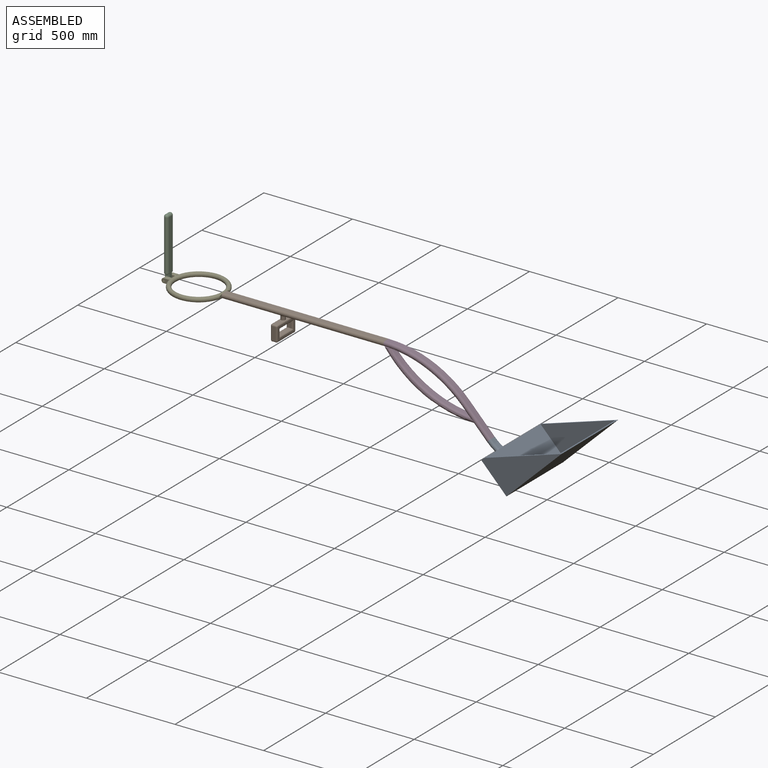
[diagram: assembled view]
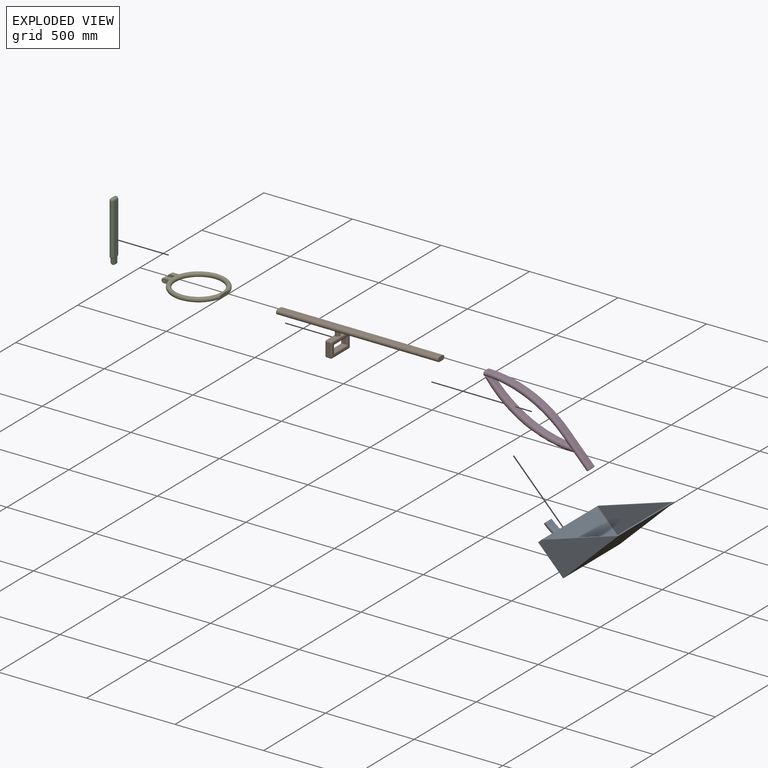
[diagram: exploded view]
GUIDED TOUR — MATED ASSEMBLY (Onshape document 1c8d9ddbb472d9208faf9aa4, AutoMate assembly 1c8d9ddbb472d9208faf9aa4_1388e3e6d33388375ee5ce7e_33b5235e5f922ec50e12a741_default)

This assembly has 5 components, labeled P0..P4 below (a component is one placed occurrence of a part; the same part can appear more than once), held together by 4 mates. A mate is a constraint between two components; its type names the relative motion it leaves free:
  FASTENED — locks the two components together rigidly (no relative motion).
Axis/direction vectors are unit vectors and 'through' points are millimeter coordinates, both in the assembly's world frame.

MATES
  1. FASTENED "Fastened 1": P1 <-> P3, direction (1.000, 0.000, 0.000) through (944.68, -0.93, -319.10) mm
  2. FASTENED "Fastened 3": P0 <-> P3, direction (-0.694, 0.000, 0.720) through (1533.77, -0.92, -655.83) mm
  3. FASTENED "Fastened 4": P2 <-> P4, direction (0.000, 1.000, 0.000) through (-287.22, 8.60, -319.10) mm
  4. FASTENED "Fastened 2": P4 <-> P1, direction (1.000, 0.000, 0.000) through (30.28, -0.93, -319.10) mm

ASSEMBLY ORDER
  1. P4 — the base component [order verified]
  2. P2 [order verified]
  3. P1 [order verified]
  4. P3 [order verified]
  5. P0 [order verified]
Order-tag legend:
  [order verified] — this step's position reverses a verified removal order: the component was checked to insert without passing through the ones already placed.

Of the 5 components, 1 carries the full construction recipe — the FeatureScript program that regenerates the part's solid from scratch; the rest are supplied as boundary geometry only.
Each toured component is shown spotlighted twice — in the assembled view, then in the exploded view, where a leader line traces a displaced component back to its assembled socket (saturated green if recipe-attached, orange if geometry-only; every other component desaturated gray) — followed by its recipe or geometry summary and the mates that hold it.
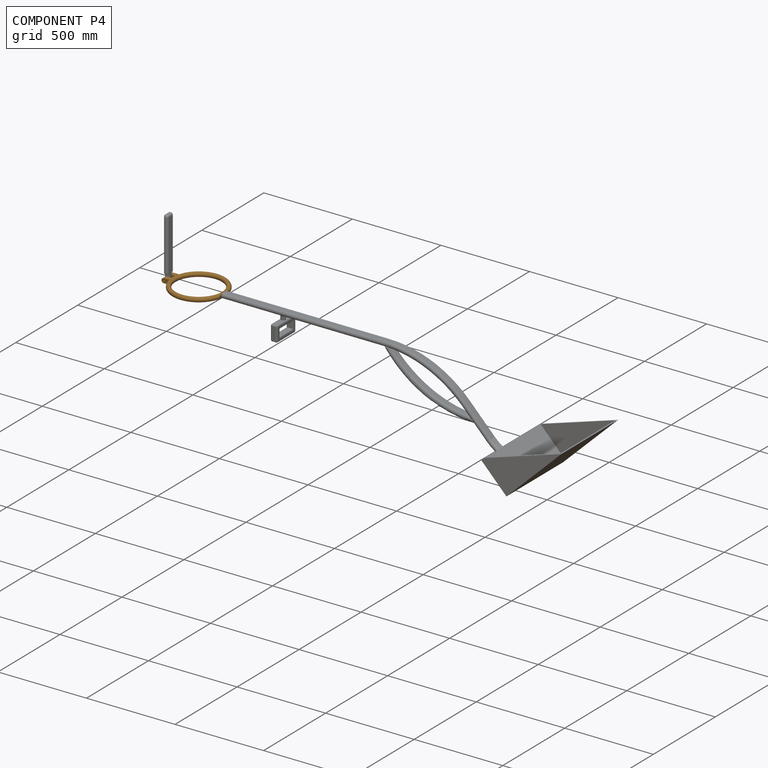
[diagram: component P4 — assembled]
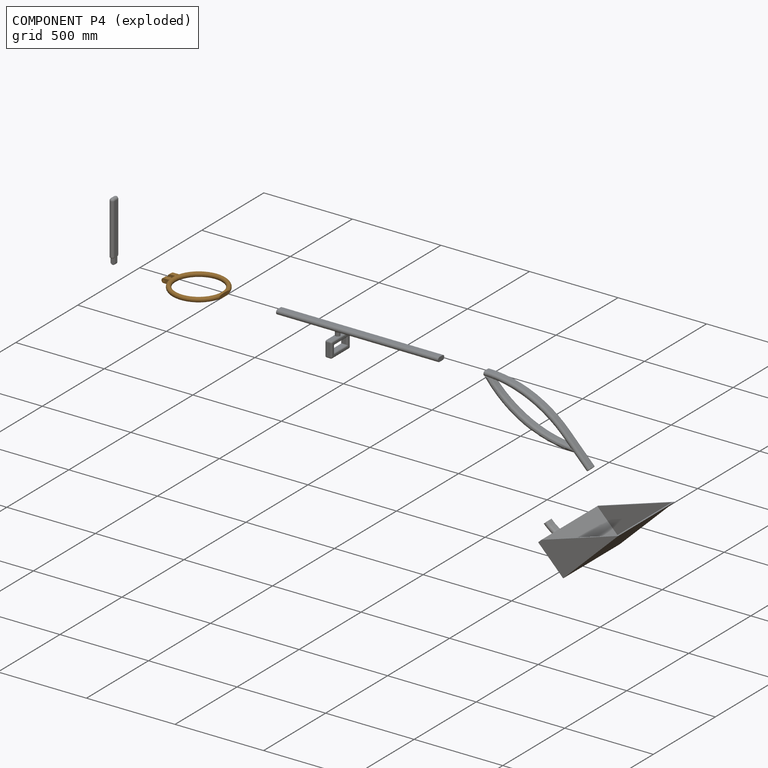
[diagram: component P4 — exploded]
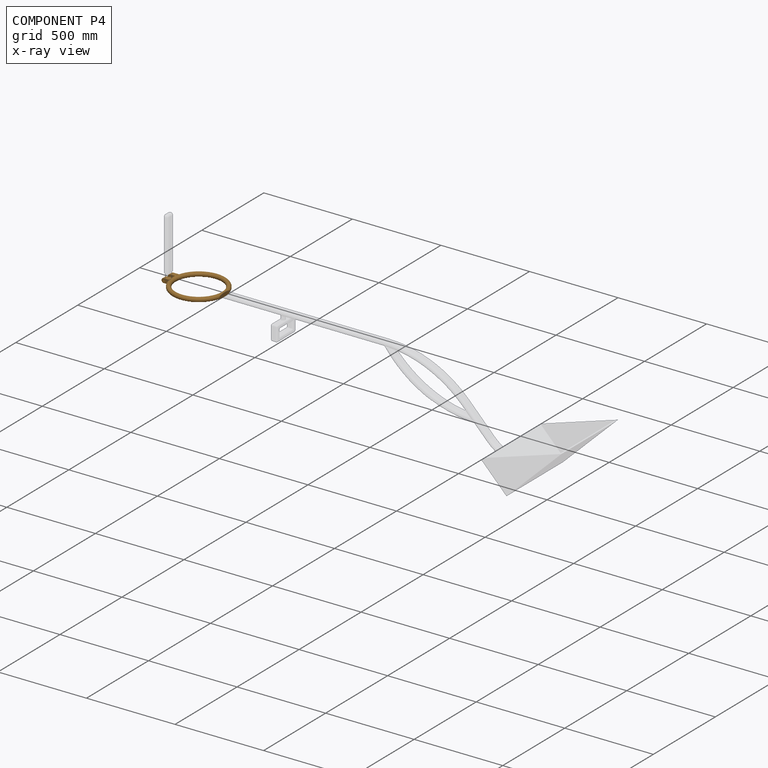
[diagram: component P4 — x-ray view]
COMPONENT P4 — geometry summary (no construction recipe available for this part):
  bounding box: 349.1 x 329.9 x 25.4 mm
  B-rep topology: 2 solids, 19 faces, 90 edges
  volume: 480827 mm^3 (16% of its bounding box)
  symmetry: mirror-symmetric across its y mid-plane
Held by: FASTENED mate "Fastened 4" to P2; FASTENED mate "Fastened 2" to P1.
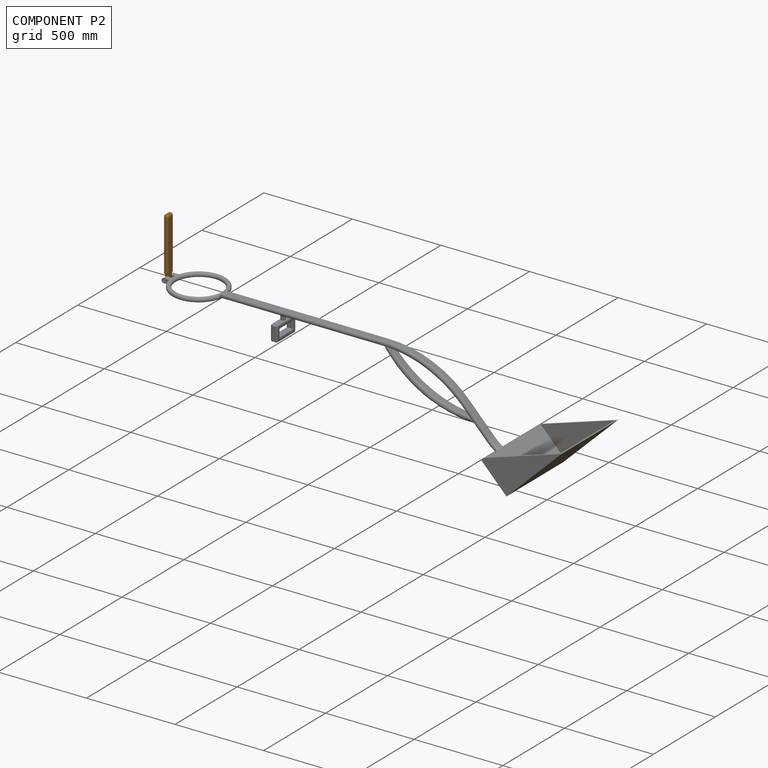
[diagram: component P2 — assembled]
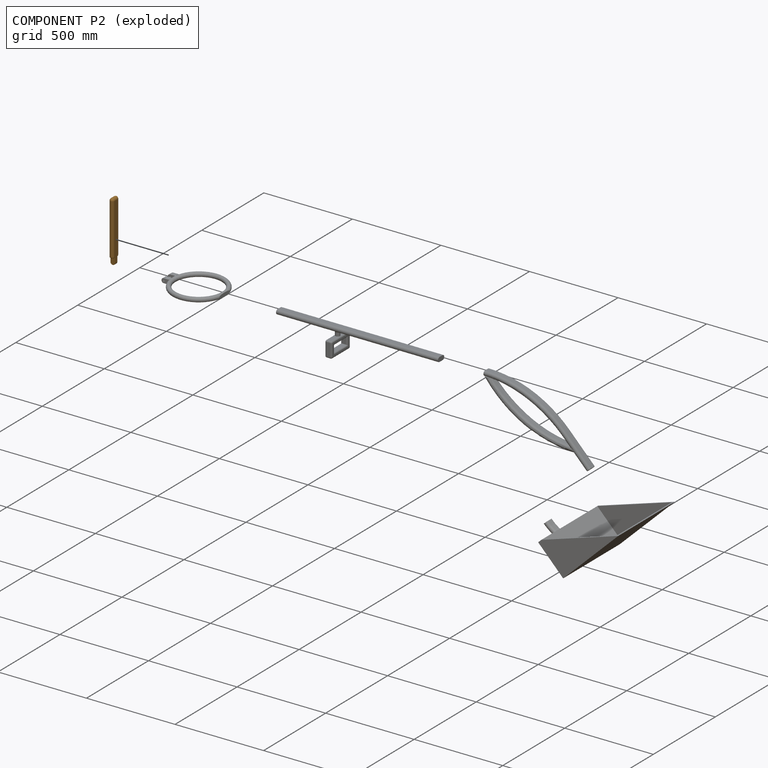
[diagram: component P2 — exploded]
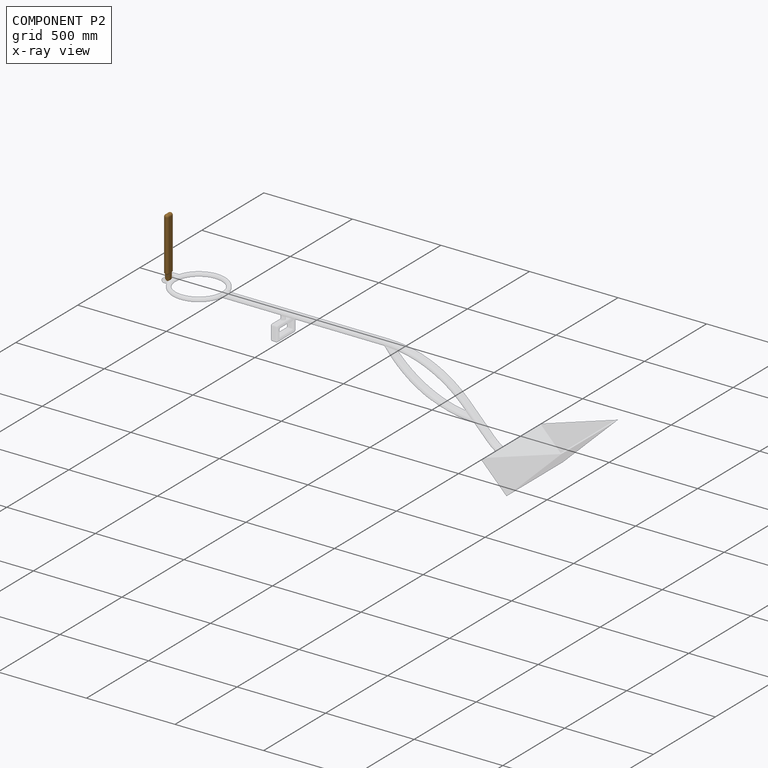
[diagram: component P2 — x-ray view]
COMPONENT P2 — geometry summary (no construction recipe available for this part):
  bounding box: 342.9 x 52.9 x 27.5 mm
  B-rep topology: 1 solid, 18 faces, 86 edges
  volume: 363579 mm^3 (73% of its bounding box)
  symmetry: 2-fold rotationally symmetric about the y axis; mirror-symmetric across its x mid-plane, z mid-plane
Held by: FASTENED mate "Fastened 4" to P4.
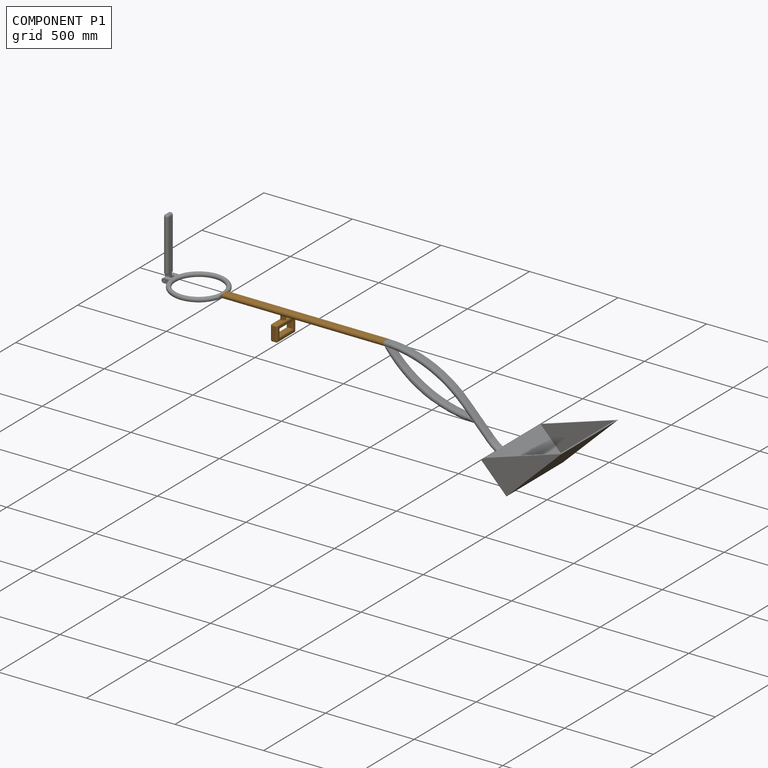
[diagram: component P1 — assembled]
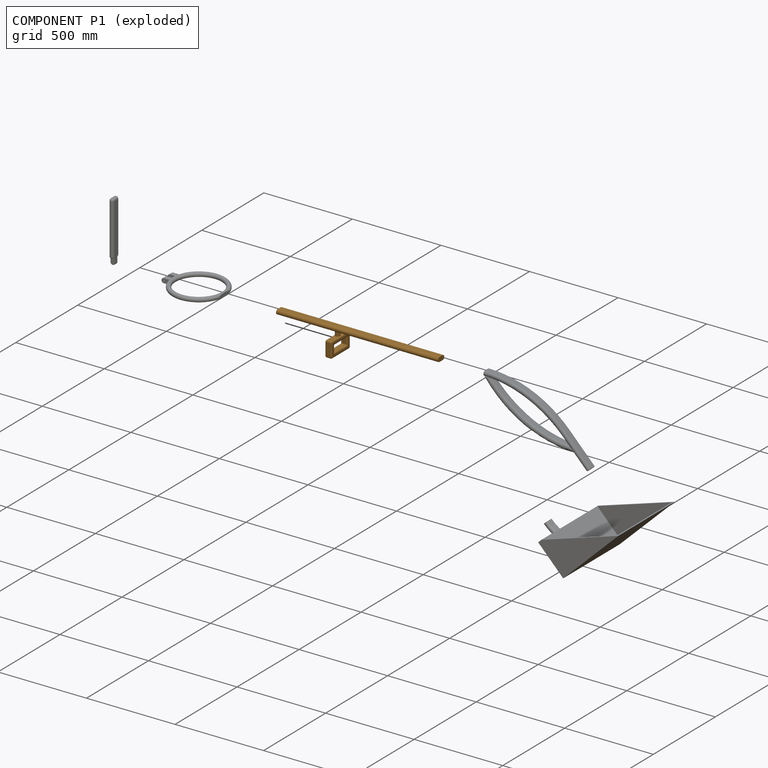
[diagram: component P1 — exploded]
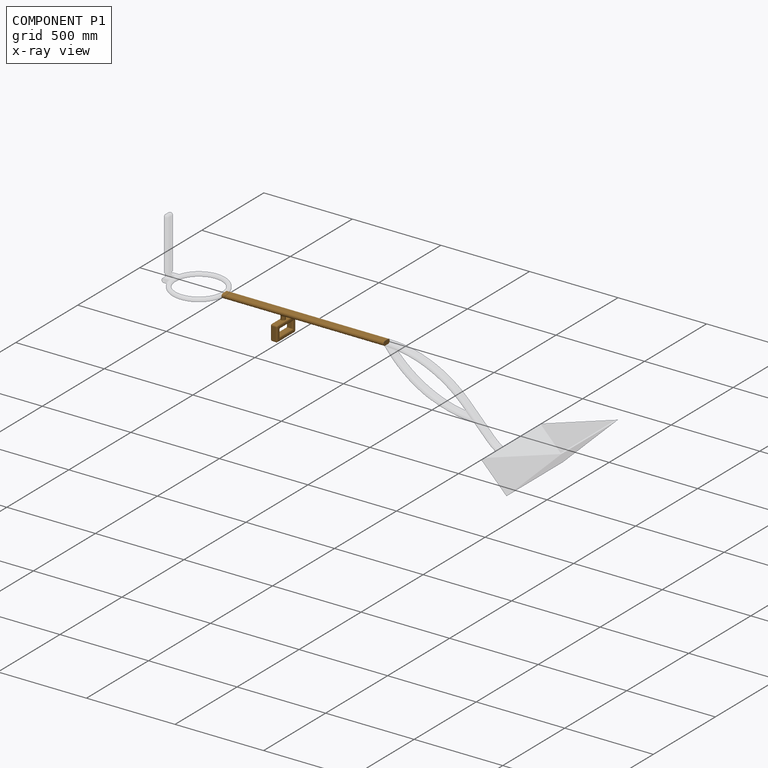
[diagram: component P1 — x-ray view]
COMPONENT P1 — geometry summary (no construction recipe available for this part):
  bounding box: 914.4 x 152.4 x 139.7 mm
  B-rep topology: 1 solid, 55 faces, 244 edges
  volume: 1411330 mm^3 (7% of its bounding box)
  symmetry: mirror-symmetric across its y mid-plane
Held by: FASTENED mate "Fastened 1" to P3; FASTENED mate "Fastened 2" to P4.
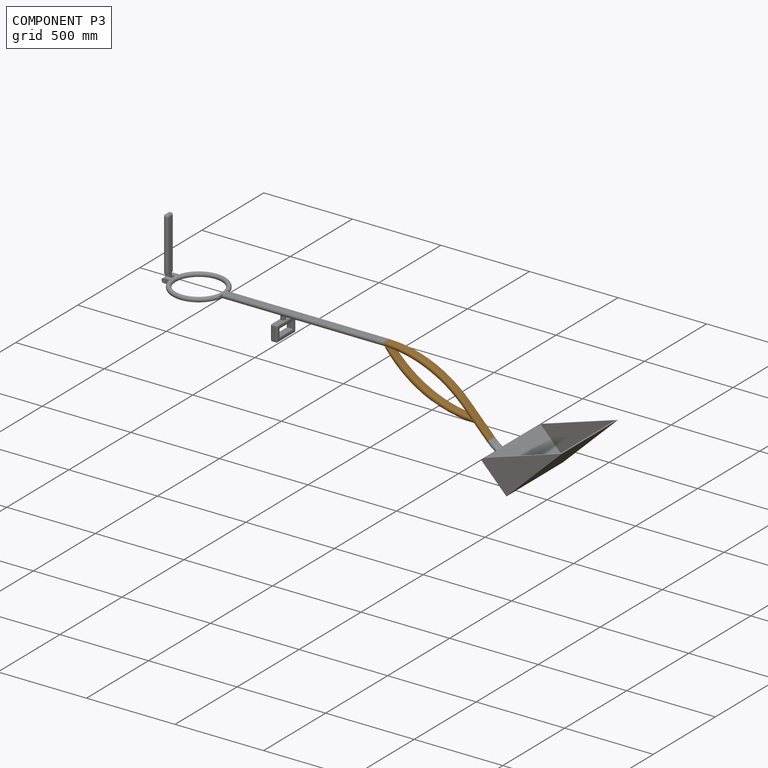
[diagram: component P3 — assembled]
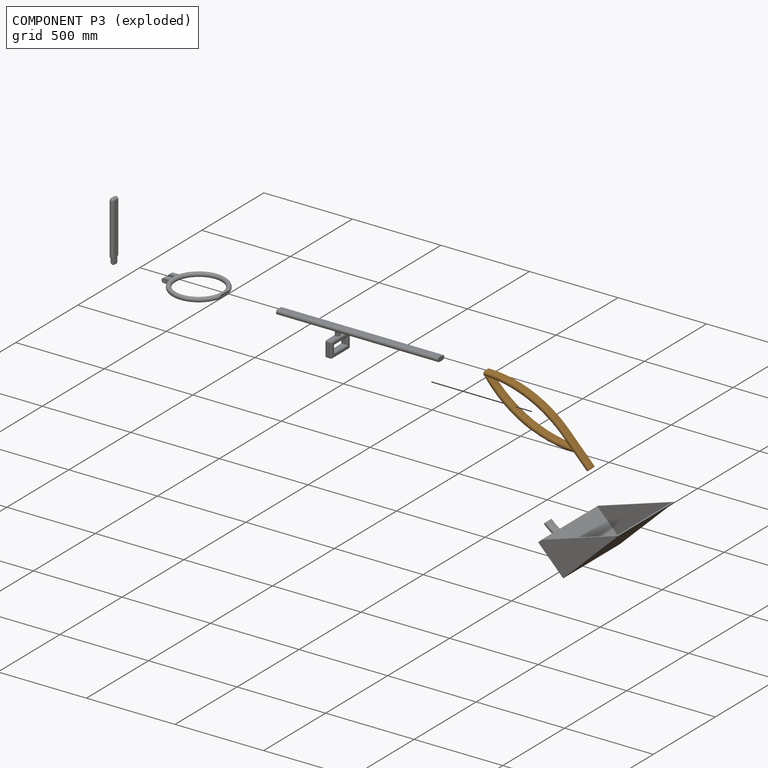
[diagram: component P3 — exploded]
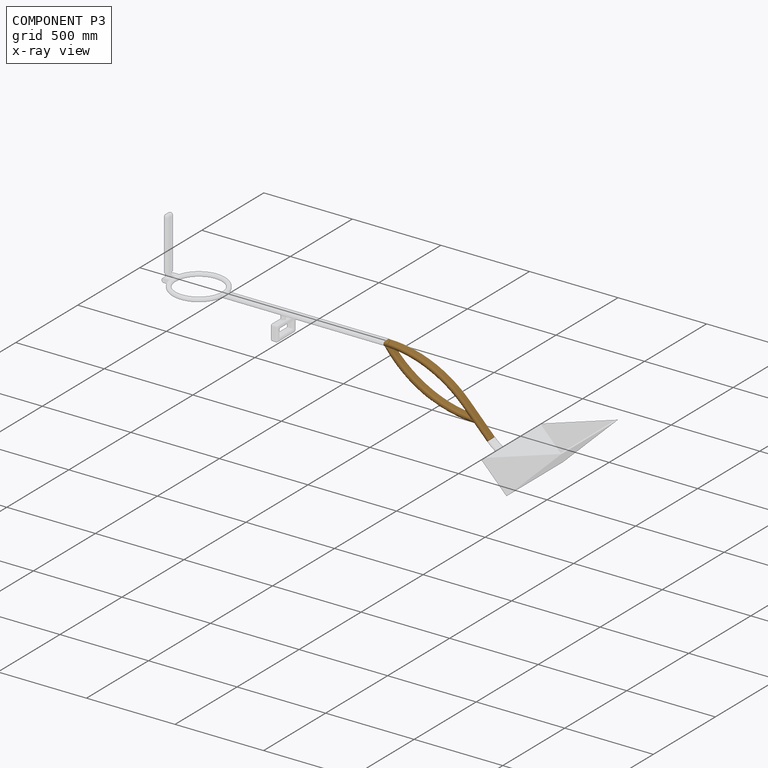
[diagram: component P3 — x-ray view]
COMPONENT P3 — geometry summary (no construction recipe available for this part):
  bounding box: 640.3 x 410.6 x 50.9 mm
  B-rep topology: 1 solid, 30 faces, 160 edges
  volume: 1540942 mm^3 (12% of its bounding box)
  symmetry: mirror-symmetric across its y mid-plane
Held by: FASTENED mate "Fastened 1" to P1; FASTENED mate "Fastened 3" to P0.
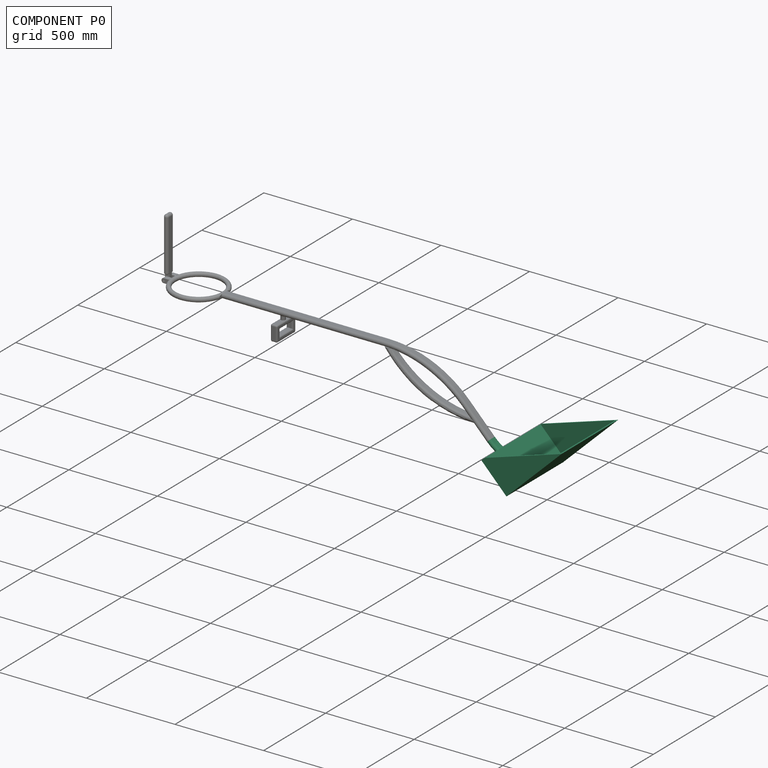
[diagram: component P0 — assembled]
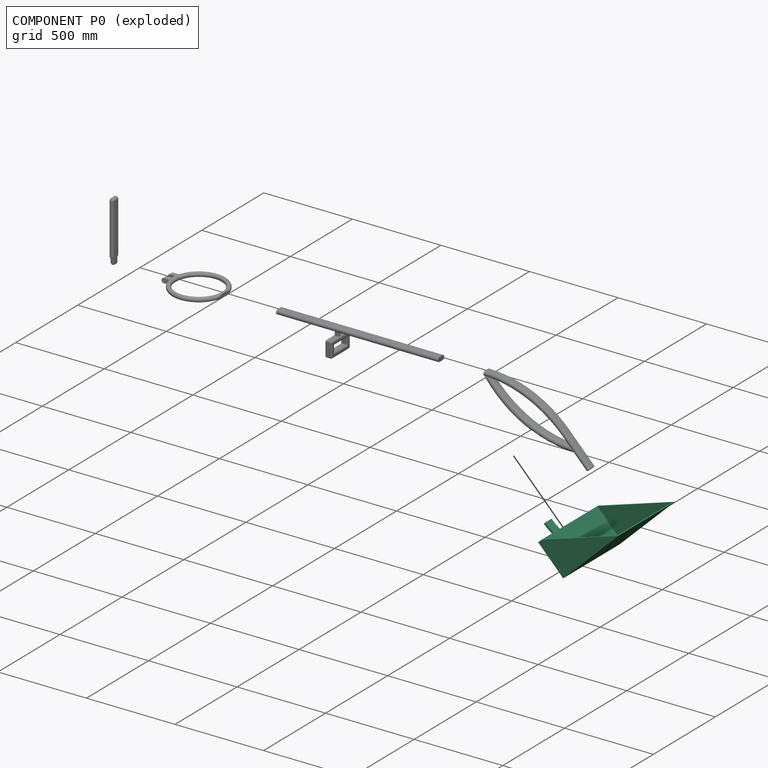
[diagram: component P0 — exploded]
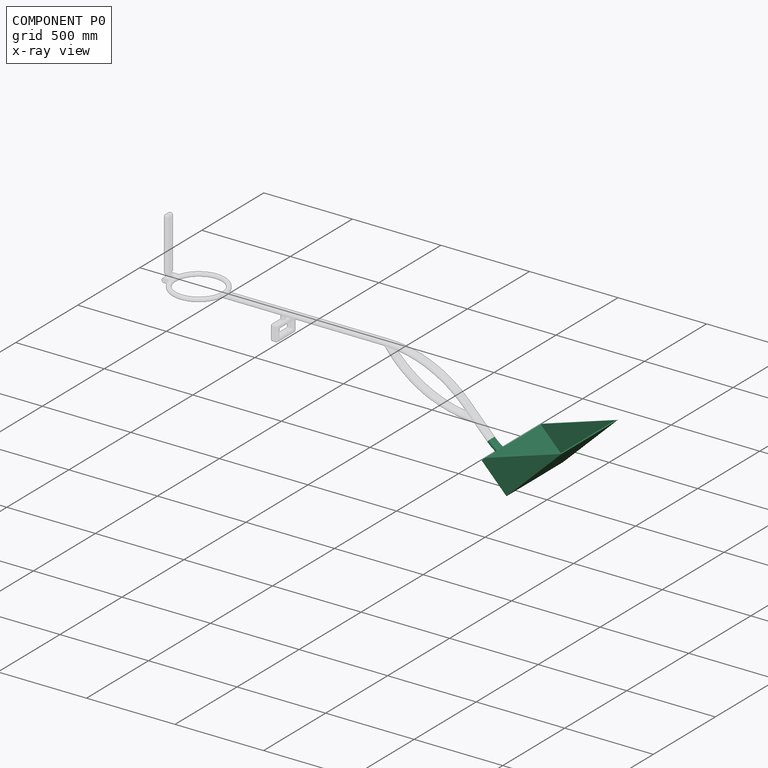
[diagram: component P0 — x-ray view]
COMPONENT P0 — recipe-attached (CADFS 00959808, mesh-verified: the recipe's output STEP matches this component's geometry to below the mesh-comparison resolution (tessellation chordal tolerance ~1.12 mm)).
Held by: FASTENED mate "Fastened 3" to P3.
Construction recipe (FeatureScript — the CAD program that rebuilds this solid; sketch coordinates are in the units given by the * unit suffixes, e.g. mm):

FeatureScript 1511;
import(path : "onshape/std/geometry.fs", version : "1511.0");
import(path : "onshape/std/common.fs", version : "1511.0");
const mm = millimeter;
const VERTEX = EntityType.VERTEX;
const EDGE = EntityType.EDGE;
const FACE = EntityType.FACE;
const BODY = EntityType.BODY;
function v(x, y){return vector(x, y);}
function OD(order){return orderDisambiguation(order);}
function OSD(set){return originalSetDisambiguation(set);}
function TD(topology){return topologyDisambiguation(topology);}
function TDD(query){return trueDependencyDisambiguation(query);}
function sQuery(a, b, c) {return sketchEntityQuery(a, b, c);}

annotation { "Feature Type Name" : "Feature", "Feature Type Description" : "" }
export const myFeature = defineFeature(function(context is Context, id is Id, definition is map)
    precondition{}
    {
        {
            var Q0;
            Q0=qCreatedBy(makeId("Top.planeOp"),FACE);
            var sketch = newSketch(context, id + "F0", { "sketchPlane" : qUnion([Q0])});
            skLineSegment(sketch, "E0.bottom", {"start": v(12.7, 12.7) * mm, "end": v(-12.7, 12.7) * mm});
            skLineSegment(sketch, "E0.top", {"start": v(12.7, -12.7) * mm, "end": v(-12.7, -12.7) * mm});
            skLineSegment(sketch, "E0.left", {"start": v(12.7, 12.7) * mm, "end": v(12.7, -12.7) * mm});
            skLineSegment(sketch, "E0.right", {"start": v(-12.7, 12.7) * mm, "end": v(-12.7, -12.7) * mm});
            skPoint(sketch, "E0.middle", {"position": v(0, 0) * mm});
            skCircle(sketch, "E1", {"center": v(0, 12.7) * mm, "radius": 12.7 * mm});
            skCircle(sketch, "E2", {"center": v(0, -12.7) * mm, "radius": 12.7 * mm});
            skLineSegment(sketch, "E3", {"start": v(254, -45.46) * mm, "end": v(254, 37.7) * mm, "construction": true});
            skSolve(sketch);
        }
        {
            var Q0;
            {var subQ0=sQuery(id+"F0.wireOp",EDGE,"E0.bottom");Q0=makeQuery(id+"F0.imprint","IMPRINT",FACE,{"disambiguationData":[TD([[makeQuery(id+"F0.imprint","IMPRINT",EDGE,{"derivedFrom":subQ0}),-1.0]])]});}
            var Q1;
            {var subQ0=sQuery(id+"F0.wireOp",EDGE,"E0.bottom");Q1=makeQuery(id+"F0.imprint","IMPRINT",FACE,{"disambiguationData":[TD([[makeQuery(id+"F0.imprint","IMPRINT",EDGE,{"derivedFrom":subQ0}),1.0]])]});}
            var Q2;
            {var subQ0=sQuery(id+"F0.wireOp",EDGE,"E0.right");Q2=makeQuery(id+"F0.imprint","IMPRINT",FACE,{"disambiguationData":[TD([[makeQuery(id+"F0.imprint","IMPRINT",EDGE,{"derivedFrom":subQ0}),1.0]])]});}
            var Q3;
            {var subQ0=sQuery(id+"F0.wireOp",EDGE,"E0.top");Q3=makeQuery(id+"F0.imprint","IMPRINT",FACE,{"disambiguationData":[TD([[makeQuery(id+"F0.imprint","IMPRINT",EDGE,{"derivedFrom":subQ0}),-1.0]])]});}
            var Q4;
            {var subQ0=sQuery(id+"F0.wireOp",EDGE,"E0.top");Q4=makeQuery(id+"F0.imprint","IMPRINT",FACE,{"disambiguationData":[TD([[makeQuery(id+"F0.imprint","IMPRINT",EDGE,{"derivedFrom":subQ0}),1.0]])]});}
            var Q5;
            {var subQ0=sQuery(id+"F0.wireOp",EDGE,"E0.left");Q5=makeQuery(id+"F0.imprint","IMPRINT",FACE,{"disambiguationData":[TD([[makeQuery(id+"F0.imprint","IMPRINT",EDGE,{"derivedFrom":subQ0}),-1.0]])]});}
            var Q6;
            Q6=sQuery(id+"F0.wireOp",EDGE,"E3");
            revolve(context, id + "F1", {"surfaceOperationType" : NewSurfaceOperationType.NEW, "entities" : qUnion([Q0, Q1, Q2, Q3, Q4, Q5]), "axis" : qUnion([Q6]), "revolveType" : RevolveType.ONE_DIRECTION, "angle" : 50 * degree});
        }
        {
            var Q0;
            Q0=qCreatedBy(makeId("Front.planeOp"),FACE);
            var sketch = newSketch(context, id + "F2", { "sketchPlane" : qUnion([Q0])});
            skLineSegment(sketch, "E4", {"start": v(82.31, 209.73) * mm, "end": v(82.31, 161.48) * mm});
            skLineSegment(sketch, "E5", {"start": v(82.31, 209.73) * mm, "end": v(106.04, 182.26) * mm});
            skLineSegment(sketch, "E6", {"start": v(106.04, 182.26) * mm, "end": v(82.31, 161.48) * mm});
            skSolve(sketch);
        }
        {
            var Q0;
            Q0=makeQuery(id+"F2.imprint","IMPRINT",FACE,{"disambiguationData":[TD([[makeQuery(id+"F2.imprint","IMPRINT",EDGE,{"derivedFrom":sQuery(id+"F2.wireOp",EDGE,"E4")}),1.0]])]});
            extrude(context, id + "F3", {"entities" : qUnion([Q0]), "operationType" : NewBodyOperationType.REMOVE, "oppositeDirection" : true, "depth" : 25.4 * mm, "offsetDistance" : 25.4 * mm, "hasSecondDirection" : true, "secondDirectionOppositeDirection" : false, "secondDirectionDepth" : 25.4 * mm});
        }
        {
            var Q0;
            Q0=makeQuery(id+"F3.boolean.opBoolean","COPY",FACE,{"derivedFrom":makeQuery(id+"F3.opExtrude","SWEPT_FACE",FACE,{"disambiguationData":[OSD([sQuery(id+"F2.wireOp",EDGE,"E4")])]})});
            var sketch = newSketch(context, id + "F4", { "sketchPlane" : qUnion([Q0])});
            skLineSegment(sketch, "E7.bottom", {"start": v(-228.6, 271.15) * mm, "end": v(228.6, 271.15) * mm});
            skLineSegment(sketch, "E7.top", {"start": v(-228.6, 67.95) * mm, "end": v(228.6, 67.95) * mm});
            skLineSegment(sketch, "E7.left", {"start": v(-228.6, 271.15) * mm, "end": v(-228.6, 67.95) * mm});
            skLineSegment(sketch, "E7.right", {"start": v(228.6, 271.15) * mm, "end": v(228.6, 67.95) * mm});
            skPoint(sketch, "E7.middle", {"position": v(0, 169.55) * mm});
            skSolve(sketch);
        }
        {
            var Q0;
            Q0=makeQuery(id+"F4.imprint","IMPRINT",FACE,{"disambiguationData":[TD([[makeQuery(id+"F4.imprint","IMPRINT",EDGE,{"derivedFrom":sQuery(id+"F4.wireOp",EDGE,"E7.bottom")}),-1.0]])]});
            var Q1;
            {var subQ0=makeQuery(id+"F3.opExtrude","SWEPT_FACE",FACE,{"disambiguationData":[OSD([sQuery(id+"F2.wireOp",EDGE,"E4")])]});Q1=makeQuery(id+"F4.imprint","IMPRINT",FACE,{"disambiguationData":[TD([[makeQuery(id+"F4.imprint","IMPRINT",EDGE,{"derivedFrom":makeQuery(id+"F3.boolean.opBoolean","INTERSECT",EDGE,{"derivedFrom":[makeQuery(id+"F1.opRevolve","SWEPT_FACE",FACE,{"disambiguationData":[OSD([sQuery(id+"F0.wireOp",EDGE,"E0.left")])]}),subQ0]})}),1.0]])]});}
            extrude(context, id + "F5", {"entities" : qUnion([Q0, Q1]), "operationType" : NewBodyOperationType.ADD, "depth" : 25.4 * mm, "offsetDistance" : 25.4 * mm});
        }
        {
            var Q0;
            Q0=makeQuery(id+"F5.opExtrude","CAP_FACE",FACE,{"disambiguationData":[OSD([sQuery(id+"F4.wireOp",EDGE,"E7.bottom"),sQuery(id+"F4.wireOp",EDGE,"E7.top"),sQuery(id+"F4.wireOp",EDGE,"E7.left"),sQuery(id+"F4.wireOp",EDGE,"E7.right")])],"isStart":false});
            var sketch = newSketch(context, id + "F6", { "sketchPlane" : qUnion([Q0])});
            skLineSegment(sketch, "E8.bottom", {"start": v(-222.25, 264.8) * mm, "end": v(222.25, 264.8) * mm});
            skLineSegment(sketch, "E8.top", {"start": v(-222.25, 67.95) * mm, "end": v(222.25, 67.95) * mm});
            skLineSegment(sketch, "E8.left", {"start": v(-222.25, 264.8) * mm, "end": v(-222.25, 67.95) * mm});
            skLineSegment(sketch, "E8.right", {"start": v(222.25, 264.8) * mm, "end": v(222.25, 67.95) * mm});
            skPoint(sketch, "E8.middle", {"position": v(0, 166.38) * mm});
            skSolve(sketch);
        }
        {
            var Q0;
            Q0=makeQuery(id+"F6.imprint","IMPRINT",FACE,{"disambiguationData":[TD([[makeQuery(id+"F6.imprint","IMPRINT",EDGE,{"derivedFrom":sQuery(id+"F6.wireOp",EDGE,"E8.bottom")}),1.0]])]});
            extrude(context, id + "F7", {"entities" : qUnion([Q0]), "operationType" : NewBodyOperationType.ADD, "depth" : 406.4 * mm, "offsetDistance" : 25.4 * mm});
        }
        {
            var Q0;
            {var subQ0=sQuery(id+"F4.wireOp",EDGE,"E7.left");Q0=makeQuery(id+"F7.boolean.opBoolean","MERGE",FACE,{"derivedFrom":[makeQuery(id+"F5.opExtrude","SWEPT_FACE",FACE,{"disambiguationData":[OSD([subQ0])]}),makeQuery(id+"F7.opExtrude","SWEPT_FACE",FACE,{"disambiguationData":[OSD([subQ0])]})]});}
            var sketch = newSketch(context, id + "F8", { "sketchPlane" : qUnion([Q0])});
            skLineSegment(sketch, "E9", {"start": v(82.31, 67.95) * mm, "end": v(107.71, 67.95) * mm});
            skLineSegment(sketch, "E10", {"start": v(107.71, 67.95) * mm, "end": v(514.11, 271.15) * mm});
            skSolve(sketch);
        }
        {
            var Q0;
            {var subQ0=sQuery(id+"F8.wireOp",EDGE,"E10");Q0=makeQuery(id+"F8.imprint","IMPRINT",FACE,{"disambiguationData":[TD([[makeQuery(id+"F8.imprint","IMPRINT",EDGE,{"derivedFrom":subQ0}),-1.0]])]});}
            extrude(context, id + "F9", {"entities" : qUnion([Q0]), "operationType" : NewBodyOperationType.REMOVE, "oppositeDirection" : true, "depth" : 457.2 * mm, "offsetDistance" : 25.4 * mm});
        }
    });
PROVENANCE & LICENSES
Assembly (occurrences, transforms, mates, per-part STEP geometry): AutoMate dataset, Zenodo record 7776208, CC0.
Construction recipes: CADFS (HuggingFace VladPyatov/CADFS, CC-BY-4.0, layered over the ABC dataset), FeatureScript reconstruction programs keyed by ABC model id.
Join: ABC meta listings map ABC model id -> Onshape documentId; within a shared document, parts are matched by geometric signature (bounding-box dims + volume at 0.1% relative tolerance, exact B-rep face/solid counts).
Verification: 1 of this assembly's 5 components carries a recipe attachment, and every attachment is mesh-verified: the CADFS STEP and the AutoMate member STEP were compared as meshes in their shared local frame (symmetric sampled-point-to-mesh distance); worst across the 1 attachment: below the mesh-comparison resolution (tessellation chordal tolerance ~1.12 mm) on a 748 mm part.
Renders: orthographic iso camera (az 35 / el 25); the floor grid conveys scale (grid pitch printed in each image; no ruler). In the exploded view each component is displaced by its stored offset vector: the offsets alone carry the explosion direction (mate normal/axis signs are not orientation cues and do not encode it), and separation distances are assigned per mate-chain, not proportionally to assembly-order depth.
